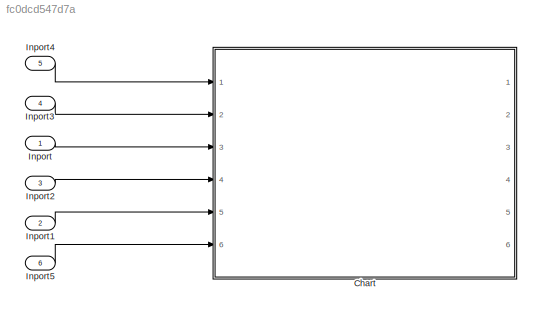
MODEL slx_fc0dcd547d7a
KIND model
CONFIG AbsTol = auto
CONFIG EnableMultiTasking = on
CONFIG FixedStep = 0.1
CONFIG MaxStep = auto
CONFIG MinStep = auto
CONFIG RelTol = 1e-3
CONFIG SampleTimeConstraint = Unconstrained
CONFIG Solver = FixedStepDiscrete
CONFIG SolverName = FixedStepDiscrete
CONFIG StartTime = 0.0
CONFIG StopTime = 10.0
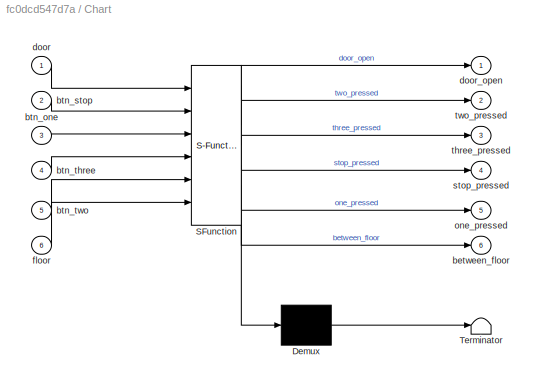
BLOCK [SubSystem] Chart
  ErrorFcn = Stateflow.Translate.translate
  PermitHierarchicalResolution = ExplicitOnly
  Ports = [6, 6]
  RequestExecContextInheritance = off
  SFBlockType = Chart
  TreatAsAtomicUnit = on
BLOCK [Demux] Chart/ Demux 
  Outputs = 1
  Ports = [1, 1]
BLOCK [S-Function] Chart/ SFunction 
  EnableBusSupport = on
  FunctionName = sf_sfun
  PortCounts = [6 7]
  Ports = [6, 7]
  SFcnIsStateOwnerBlock = off
  SFunctionDeploymentMode = off
  Tag = Stateflow S-Function btns 3
BLOCK [Terminator] Chart/ Terminator 
BLOCK [Outport] Chart/between_floor
  IconDisplay = Port number
  Port = 6
BLOCK [Inport] Chart/btn_one
  IconDisplay = Port number
  Port = 3
BLOCK [Inport] Chart/btn_stop
  IconDisplay = Port number
  Port = 2
BLOCK [Inport] Chart/btn_three
  IconDisplay = Port number
  Port = 4
BLOCK [Inport] Chart/btn_two
  IconDisplay = Port number
  Port = 5
BLOCK [Inport] Chart/door
  IconDisplay = Port number
BLOCK [Outport] Chart/door_open
  IconDisplay = Port number
BLOCK [Inport] Chart/floor
  IconDisplay = Port number
  Port = 6
BLOCK [Outport] Chart/one_pressed
  IconDisplay = Port number
  Port = 5
BLOCK [Outport] Chart/stop_pressed
  IconDisplay = Port number
  Port = 4
BLOCK [Outport] Chart/three_pressed
  IconDisplay = Port number
  Port = 3
BLOCK [Outport] Chart/two_pressed
  IconDisplay = Port number
  Port = 2
BLOCK [Inport] Inport
  IconDisplay = Port number
BLOCK [Inport] Inport1
  IconDisplay = Port number
  Port = 2
BLOCK [Inport] Inport2
  IconDisplay = Port number
  Port = 3
BLOCK [Inport] Inport3
  IconDisplay = Port number
  Port = 4
BLOCK [Inport] Inport4
  IconDisplay = Port number
  Port = 5
BLOCK [Inport] Inport5
  IconDisplay = Port number
  Port = 6
LINE Inport1:1 -> Chart:5
LINE Inport2:1 -> Chart:4
LINE Inport3:1 -> Chart:2
LINE Inport4:1 -> Chart:1
LINE Inport5:1 -> Chart:6
LINE Inport:1 -> Chart:3
CHART Chart states=13 transitions=25
  STATE_LABEL 'Reset\nentry:\none_pressed = 0;\ntwo_pressed = 0;\nthree_pressed = 0;\ndoor_open = 0;\nstop_pressed = 0;'
  STATE_LABEL 'two_bounce'
  STATE_LABEL 'three_bounce'
  STATE_LABEL 'stop_bounce'
  STATE_LABEL 'one_bounce'
  STATE_LABEL 'door_bounce'
  STATE_LABEL 'floor_bounce'
  STATE_LABEL 'floor_pos\nentry :\nbetween_floor = 1;'
  STATE_LABEL 'two_press\nentry:\ntwo_pressed = 1;'
  STATE_LABEL 'stop_press\nentry:\nstop_pressed =1 ;'
  STATE_LABEL 'three_press\nentry:\nthree_pressed = 1;'
  STATE_LABEL 'door_status\nentry:\ndoor_open = 1;'
  STATE_LABEL 'one_press\nentry:\none_pressed = 1;'
